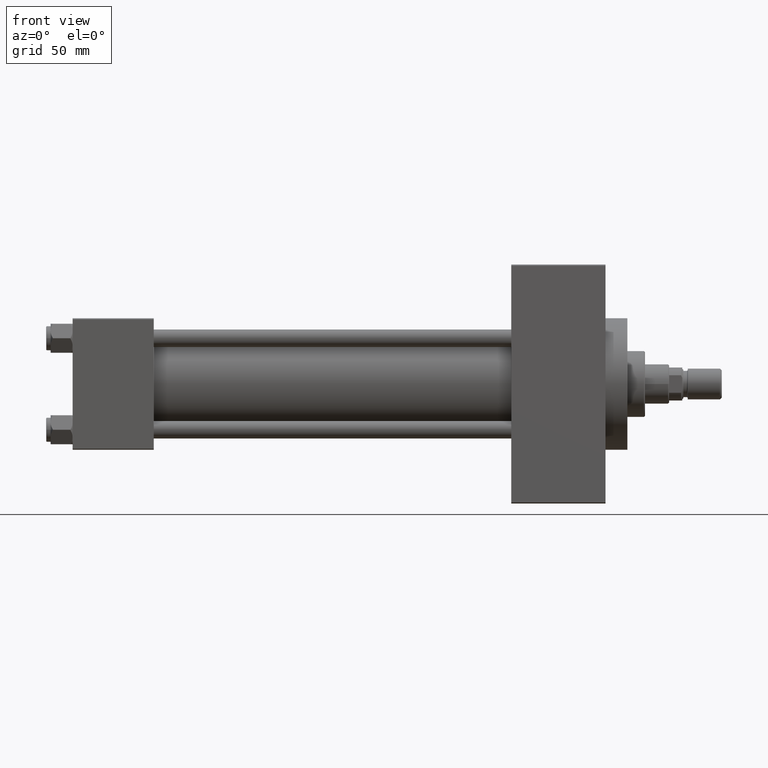
[diagram: clean part render]
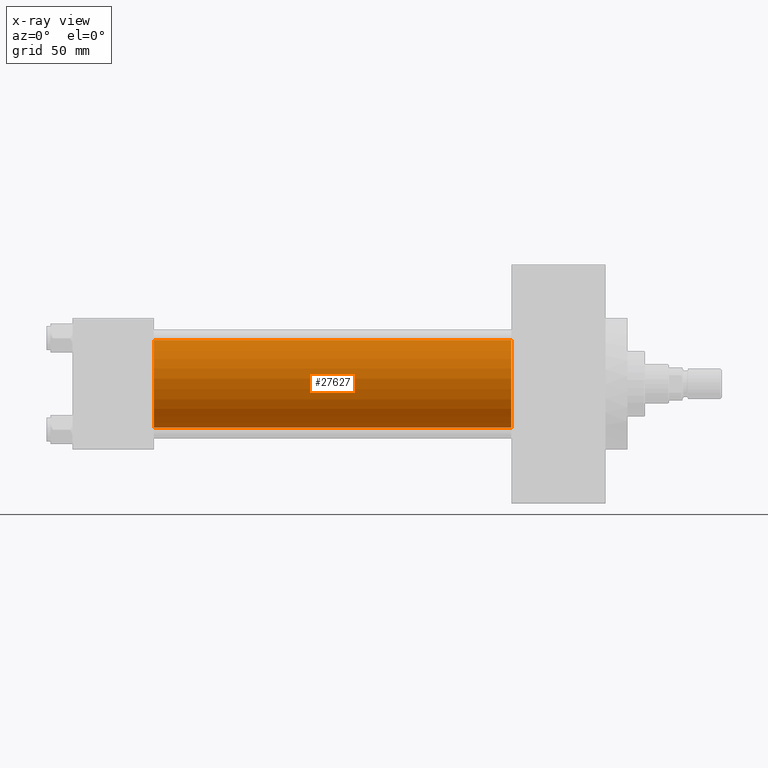
[diagram: x-ray — body ghosted, one internal face saturated and labeled with its STEP entity id]
A machine part, front view, then the same camera in x-ray: the body is ghosted and one INTERNAL B-rep face — a face not visible from any outside direction — is saturated and labeled: STEP entity #27627.
In plain terms, the highlighted cylindrical surface (partial cylindrical patch) has radius 20 mm, axis along (-1, -0, -0).
Its self-contained STEP definition (entity closure, byte-faithful):
#2338 = DIRECTION ( 'NONE',  ( 0.000000000000000000, 0.000000000000000000, -1.000000000000000000 ) ) ;
#2398 = DIRECTION ( 'NONE',  ( -1.000000000000000000, -0.000000000000000000, -0.000000000000000000 ) ) ;
#2695 = ORIENTED_EDGE ( 'NONE', *, *, #30578, .F. ) ;
#5401 = VERTEX_POINT ( 'NONE', #24748 ) ;
#6412 = CARTESIAN_POINT ( 'NONE',  ( 200.0000000000000000, -2.602085213965210642E-15, 0.000000000000000000 ) ) ;
#7005 = DIRECTION ( 'NONE',  ( -1.000000000000000000, -0.000000000000000000, -0.000000000000000000 ) ) ;
#7353 = VERTEX_POINT ( 'NONE', #12006 ) ;
#9461 = CYLINDRICAL_SURFACE ( 'NONE', #44471, 20.00000000000000000 ) ;
#10204 = CARTESIAN_POINT ( 'NONE',  ( 200.0000000000000000, -2.602085213965210642E-15, 0.000000000000000000 ) ) ;
#10561 = EDGE_LOOP ( 'NONE', ( #14413, #30447, #28051, #2695 ) ) ;
#11164 = CIRCLE ( 'NONE', #48947, 20.00000000000000000 ) ;
#11274 = DIRECTION ( 'NONE',  ( -1.000000000000000000, -0.000000000000000000, -0.000000000000000000 ) ) ;
#11357 = EDGE_CURVE ( 'NONE', #7353, #41516, #11831, .T. ) ;
#11831 = CIRCLE ( 'NONE', #37580, 20.00000000000000000 ) ;
#12006 = CARTESIAN_POINT ( 'NONE',  ( 200.0000000000000000, -2.602085213965210642E-15, 20.00000000000000000 ) ) ;
#14413 = ORIENTED_EDGE ( 'NONE', *, *, #11357, .T. ) ;
#17531 = DIRECTION ( 'NONE',  ( 0.000000000000000000, 0.000000000000000000, -1.000000000000000000 ) ) ;
#18639 = EDGE_CURVE ( 'NONE', #5401, #23505, #11164, .T. ) ;
#23097 = CARTESIAN_POINT ( 'NONE',  ( 200.0000000000000000, -1.527916156705042519E-16, -20.00000000000000000 ) ) ;
#23505 = VERTEX_POINT ( 'NONE', #28600 ) ;
#24120 = EDGE_CURVE ( 'NONE', #41516, #23505, #29177, .T. ) ;
#24748 = CARTESIAN_POINT ( 'NONE',  ( 37.00000000000000000, -2.602085213965210642E-15, 20.00000000000000000 ) ) ;
#24992 = CARTESIAN_POINT ( 'NONE',  ( 37.00000000000000000, -2.602085213965210642E-15, 0.000000000000000000 ) ) ;
#25050 = DIRECTION ( 'NONE',  ( 0.000000000000000000, 0.000000000000000000, 1.000000000000000000 ) ) ;
#25160 = VECTOR ( 'NONE', #11274, 1000.000000000000000 ) ;
#27627 = ADVANCED_FACE ( 'NONE', ( #28344 ), #9461, .F. ) ;
#28051 = ORIENTED_EDGE ( 'NONE', *, *, #18639, .F. ) ;
#28344 = FACE_OUTER_BOUND ( 'NONE', #10561, .T. ) ;
#28600 = CARTESIAN_POINT ( 'NONE',  ( 37.00000000000000000, -1.527916156705042519E-16, -20.00000000000000000 ) ) ;
#29177 = LINE ( 'NONE', #37230, #39508 ) ;
#30447 = ORIENTED_EDGE ( 'NONE', *, *, #24120, .T. ) ;
#30578 = EDGE_CURVE ( 'NONE', #7353, #5401, #45775, .T. ) ;
#37230 = CARTESIAN_POINT ( 'NONE',  ( 200.0000000000000000, -1.527916156705042519E-16, -20.00000000000000000 ) ) ;
#37400 = DIRECTION ( 'NONE',  ( 1.000000000000000000, 0.000000000000000000, 0.000000000000000000 ) ) ;
#37580 = AXIS2_PLACEMENT_3D ( 'NONE', #10204, #37400, #17531 ) ;
#38734 = CARTESIAN_POINT ( 'NONE',  ( 200.0000000000000000, -2.602085213965210642E-15, 20.00000000000000000 ) ) ;
#39508 = VECTOR ( 'NONE', #7005, 1000.000000000000000 ) ;
#41516 = VERTEX_POINT ( 'NONE', #23097 ) ;
#44471 = AXIS2_PLACEMENT_3D ( 'NONE', #6412, #2398, #25050 ) ;
#45775 = LINE ( 'NONE', #38734, #25160 ) ;
#48144 = DIRECTION ( 'NONE',  ( 1.000000000000000000, 0.000000000000000000, 0.000000000000000000 ) ) ;
#48947 = AXIS2_PLACEMENT_3D ( 'NONE', #24992, #48144, #2338 ) ;